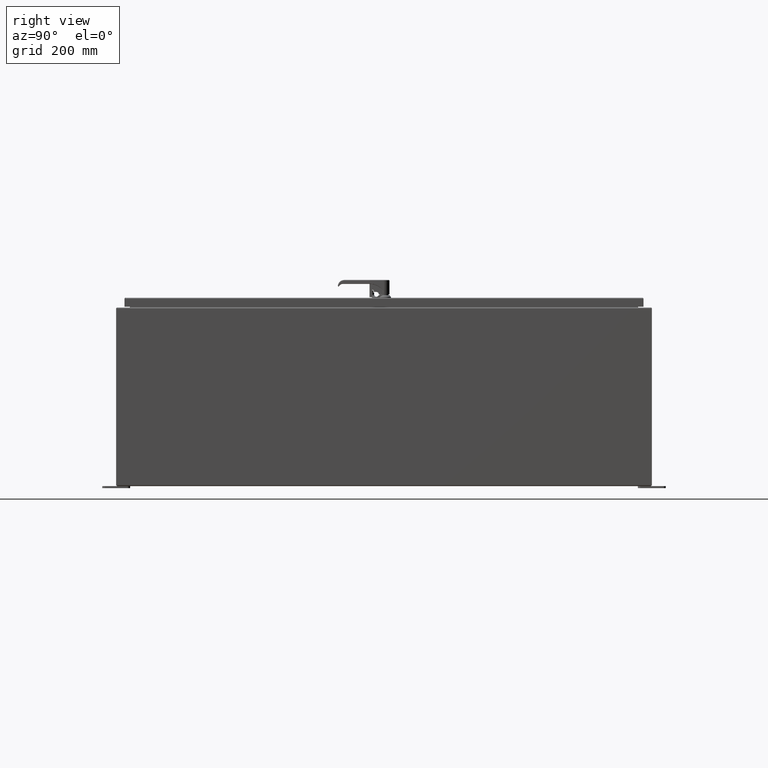
[diagram: clean part render]
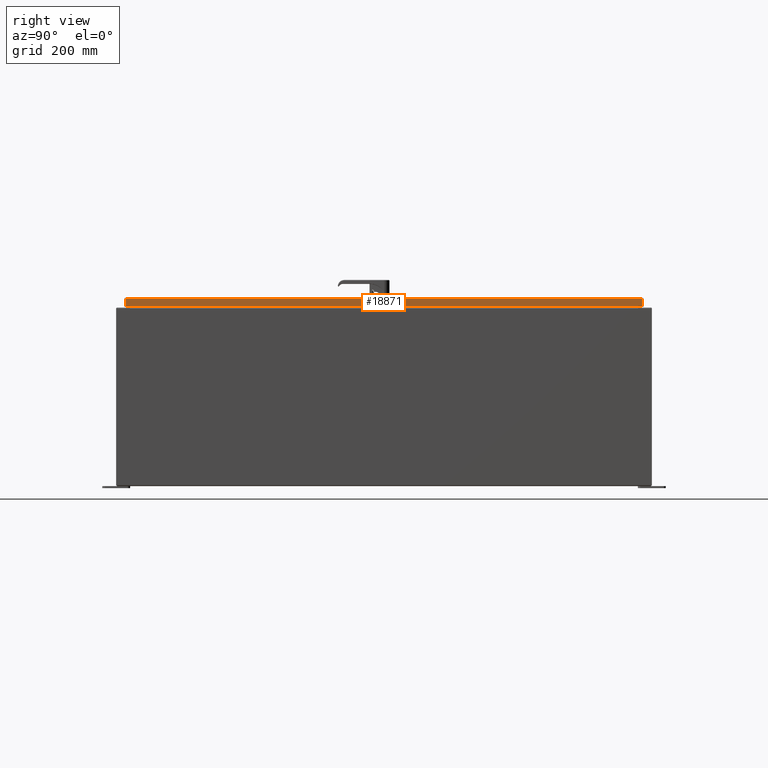
[diagram: same view with one face highlighted and labeled with its STEP entity id]
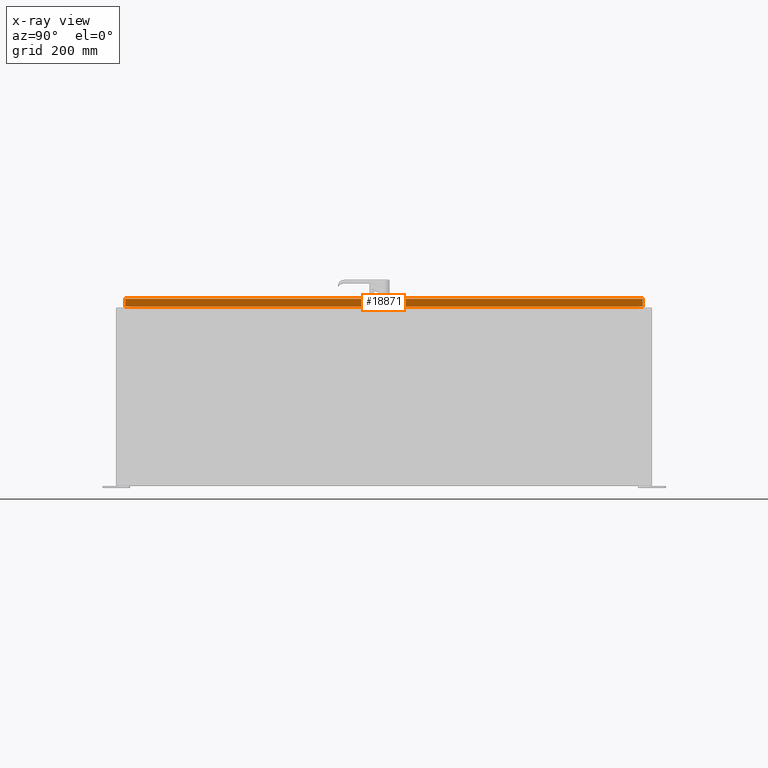
[diagram: x-ray of the same camera — body ghosted, the highlighted face saturated]
A machine part, right view. The second image highlights one B-rep face of the part: STEP entity #18871.
The next image is the same camera in x-ray: the body ghosted, the highlighted face saturated — about 0% of this face is hidden behind the body in this view.
In plain terms, the highlighted planar face has unit normal (1, 0, -0).
Its self-contained STEP definition (entity closure, byte-faithful):
#18614=CARTESIAN_POINT('',(34.343749999999986,46.425292893218824,-0.031250000000011));
#18615=VERTEX_POINT('',#18614);
#18616=CARTESIAN_POINT('',(34.34375,0.07470710678118,-0.031250000000011));
#18617=VERTEX_POINT('',#18616);
#18618=CARTESIAN_POINT('',(34.343749999999986,46.425292893218824,-0.031250000000011));
#18619=DIRECTION('',(0.0,-1.0,0.0));
#18620=VECTOR('',#18619,46.350585786437648);
#18621=LINE('',#18618,#18620);
#18622=EDGE_CURVE('',#18615,#18617,#18621,.T.);
#18702=CARTESIAN_POINT('',(34.343749999999957,0.074707106781179,-0.738500000000009));
#18703=VERTEX_POINT('',#18702);
#18704=CARTESIAN_POINT('',(34.343749999999964,0.074707106781179,-0.738500000000009));
#18705=DIRECTION('',(0.0,0.0,1.0));
#18706=VECTOR('',#18705,0.707249999999998);
#18707=LINE('',#18704,#18706);
#18708=EDGE_CURVE('',#18703,#18617,#18707,.T.);
#18824=CARTESIAN_POINT('',(34.343749999999943,46.425292893218824,-0.738500000000009));
#18825=VERTEX_POINT('',#18824);
#18826=CARTESIAN_POINT('',(34.343749999999986,46.425292893218824,-0.031250000000011));
#18827=DIRECTION('',(0.0,0.0,-1.0));
#18828=VECTOR('',#18827,0.707249999999998);
#18829=LINE('',#18826,#18828);
#18830=EDGE_CURVE('',#18615,#18825,#18829,.T.);
#18848=CARTESIAN_POINT('',(34.343749999999943,46.425292893218824,-0.738500000000009));
#18849=DIRECTION('',(0.0,-1.0,0.0));
#18850=VECTOR('',#18849,46.350585786437648);
#18851=LINE('',#18848,#18850);
#18852=EDGE_CURVE('',#18825,#18703,#18851,.T.);
#18860=CARTESIAN_POINT('',(34.343749999999972,23.250000000000004,-0.334986238968148));
#18861=DIRECTION('',(1.0,0.0,0.0));
#18862=DIRECTION('',(0.0,0.0,-1.0));
#18863=AXIS2_PLACEMENT_3D('',#18860,#18861,#18862);
#18864=PLANE('',#18863);
#18865=ORIENTED_EDGE('',*,*,#18622,.T.);
#18866=ORIENTED_EDGE('',*,*,#18708,.F.);
#18867=ORIENTED_EDGE('',*,*,#18852,.F.);
#18868=ORIENTED_EDGE('',*,*,#18830,.F.);
#18869=EDGE_LOOP('',(#18865,#18866,#18867,#18868));
#18870=FACE_OUTER_BOUND('',#18869,.T.);
#18871=ADVANCED_FACE('',(#18870),#18864,.T.);